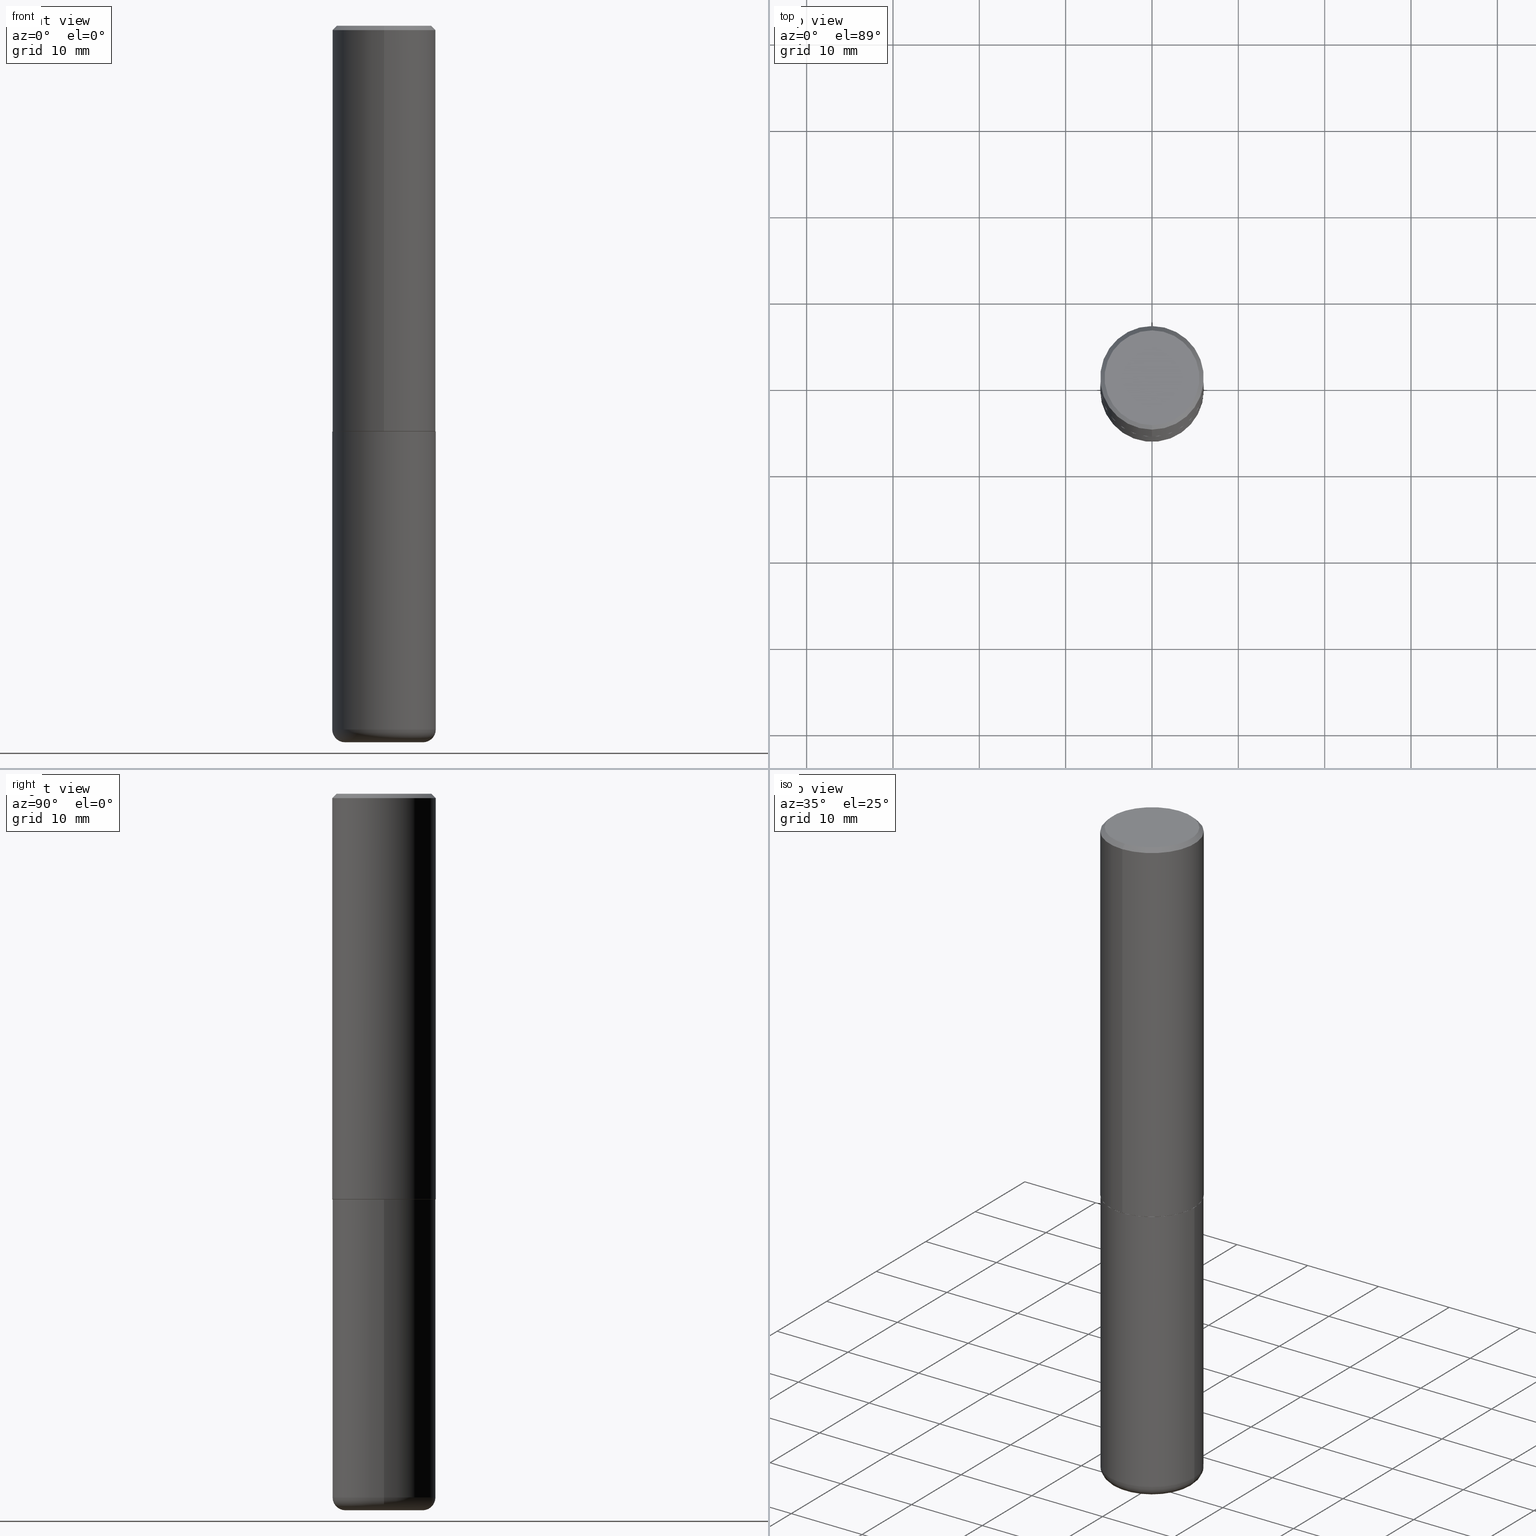
[diagram: canonical four-view strip — front | top / right | iso, engineering-drawing reading convention]
A machine part, canonical four-view strip (front | top / right | iso — engineering-drawing reading convention). The complete STEP part file that produces these views, byte-faithful:
ISO-10303-21;
HEADER;
FILE_DESCRIPTION (( 'STEP AP203' ),
    '1' );
FILE_NAME ('47546.STEP',
    '2024-03-06T09:44:39',
    ( '' ),
    ( '' ),
    'SwSTEP 2.0',
    'SolidWorks 2023',
    '' );
FILE_SCHEMA (( 'CONFIG_CONTROL_DESIGN' ));
ENDSEC;

DATA;
#1 = DIRECTION ( 'NONE',  ( 6.982962677686265922E-15, 1.000000000000000000, -3.487819265831411744E-15 ) ) ;
#2 = CLOSED_SHELL ( 'NONE', ( #323, #149, #412, #398, #386, #350, #132, #407 ) ) ;
#3 = PRODUCT_DEFINITION_SHAPE ( 'NONE', 'NONE',  #375 ) ;
#4 = CYLINDRICAL_SURFACE ( 'NONE', #363, 0.2361999999999999933 ) ;
#5 = VERTEX_POINT ( 'NONE', #80 ) ;
#6 = CARTESIAN_POINT ( 'NONE',  ( -0.1771000000000000074, -9.944395838780979940E-15, -3.208600000000000119 ) ) ;
#7 = DIRECTION ( 'NONE',  ( 1.000000000000000000, -6.982962677686265133E-15, 0.000000000000000000 ) ) ;
#8 = CARTESIAN_POINT ( 'NONE',  ( 7.991058417971171713E-29, -1.140911357093774644E-14, -3.267700000000000049 ) ) ;
#9 = LINE ( 'NONE', #72, #157 ) ;
#10 = CIRCLE ( 'NONE', #194, 0.2161999999999996425 ) ;
#11 = LOCAL_TIME ( 4, 44, 39.00000000000000000, #176 ) ;
#12 = DIMENSIONAL_EXPONENTS ( 1.000000000000000000, 0.000000000000000000, 0.000000000000000000, 0.000000000000000000, 0.000000000000000000, 0.000000000000000000, 0.000000000000000000 ) ;
#13 = DIRECTION ( 'NONE',  ( -1.000000000000000000, 7.105427357600997914E-15, 0.000000000000000000 ) ) ;
#14 = ORIENTED_EDGE ( 'NONE', *, *, #73, .T. ) ;
#15 = CC_DESIGN_DATE_AND_TIME_ASSIGNMENT ( #308, #32, ( #186 ) ) ;
#16 = DIRECTION ( 'NONE',  ( 1.000000000000000000, -6.982962677686265922E-15, 4.883557194083112340E-29 ) ) ;
#17 = CARTESIAN_POINT ( 'NONE',  ( 4.524916211156691287E-29, -6.460893791100115503E-15, -1.850400000000000489 ) ) ;
#18 = DIRECTION ( 'NONE',  ( -2.445371925614294233E-29, 3.491620077334691546E-15, 1.000000000000000000 ) ) ;
#19 = ORIENTED_EDGE ( 'NONE', *, *, #353, .F. ) ;
#20 = DIRECTION ( 'NONE',  ( -2.445371925614294233E-29, 3.491620077334691546E-15, 1.000000000000000000 ) ) ;
#21 = CARTESIAN_POINT ( 'NONE',  ( 0.000000000000000000, 0.000000000000000000, 0.000000000000000000 ) ) ;
#22 = EDGE_LOOP ( 'NONE', ( #48, #111, #252, #362 ) ) ;
#23 = CARTESIAN_POINT ( 'NONE',  ( -0.2361999999999999933, -9.524465081946761225E-15, -3.208600000000000119 ) ) ;
#24 = FACE_OUTER_BOUND ( 'NONE', #397, .T. ) ;
#25 = EDGE_CURVE ( 'NONE', #68, #302, #195, .T. ) ;
#26 = DIRECTION ( 'NONE',  ( -2.445371925614294233E-29, 3.491620077334691546E-15, 1.000000000000000000 ) ) ;
#27 = PERSON_AND_ORGANIZATION_ROLE ( 'creator' ) ;
#28 = ORIENTED_EDGE ( 'NONE', *, *, #393, .F. ) ;
#29 = CIRCLE ( 'NONE', #408, 0.2362000000000002153 ) ;
#30 = DIRECTION ( 'NONE',  ( 1.000000000000000000, -6.982962677686265133E-15, 0.000000000000000000 ) ) ;
#31 = VECTOR ( 'NONE', #97, 39.37007874015748143 ) ;
#32 = DATE_TIME_ROLE ( 'classification_date' ) ;
#33 = ORIENTED_EDGE ( 'NONE', *, *, #388, .F. ) ;
#34 =( LENGTH_UNIT ( ) NAMED_UNIT ( * ) SI_UNIT ( $, .METRE. ) );
#35 = DIRECTION ( 'NONE',  ( 2.445371925614294233E-29, -3.491620077334691546E-15, -1.000000000000000000 ) ) ;
#36 = CC_DESIGN_PERSON_AND_ORGANIZATION_ASSIGNMENT ( #93, #261, ( #146 ) ) ;
#37 = AXIS2_PLACEMENT_3D ( 'NONE', #288, #264, #7 ) ;
#38 = LOCAL_TIME ( 4, 44, 39.00000000000000000, #180 ) ;
#39 = MECHANICAL_CONTEXT ( 'NONE', #219, 'mechanical' ) ;
#40 = ORIENTED_EDGE ( 'NONE', *, *, #108, .T. ) ;
#41 = EDGE_LOOP ( 'NONE', ( #314, #47, #40, #262 ) ) ;
#42 = AXIS2_PLACEMENT_3D ( 'NONE', #244, #249, #30 ) ;
#43 = FACE_OUTER_BOUND ( 'NONE', #116, .T. ) ;
#44 = LINE ( 'NONE', #271, #31 ) ;
#45 = CARTESIAN_POINT ( 'NONE',  ( -8.038070963430480451E-45, 1.147714573189292330E-30, 3.287054569996039822E-16 ) ) ;
#46 = PLANE ( 'NONE',  #123 ) ;
#47 = ORIENTED_EDGE ( 'NONE', *, *, #190, .T. ) ;
#48 = ORIENTED_EDGE ( 'NONE', *, *, #73, .F. ) ;
#49 = CONICAL_SURFACE ( 'NONE', #233, 0.2351999999999999924, 0.7853981633973801113 ) ;
#50 = DIRECTION ( 'NONE',  ( -6.982962677686265133E-15, -1.000000000000000000, 3.469747663417773847E-15 ) ) ;
#51 = PLANE ( 'NONE',  #203 ) ;
#52 = DIRECTION ( 'NONE',  ( -2.445468806185136597E-29, 3.491481338843145583E-15, 1.000000000000000000 ) ) ;
#53 = ORIENTED_EDGE ( 'NONE', *, *, #117, .T. ) ;
#54 = LOCAL_TIME ( 4, 44, 39.00000000000000000, #193 ) ;
#55 = FACE_OUTER_BOUND ( 'NONE', #131, .T. ) ;
#56 = COORDINATED_UNIVERSAL_TIME_OFFSET ( 5, 0, .BEHIND. ) ;
#57 = UNCERTAINTY_MEASURE_WITH_UNIT (LENGTH_MEASURE( 1.000000000000000082E-05 ), #411, 'distance_accuracy_value', 'NONE');
#58 = CALENDAR_DATE ( 2024, 6, 3 ) ;
#59 = DIRECTION ( 'NONE',  ( -6.982962677686265133E-15, -1.000000000000000000, 3.484499991918703113E-15 ) ) ;
#60 = CARTESIAN_POINT ( 'NONE',  ( 4.525095478964977394E-29, -6.460637069395357576E-15, -1.850400000000000267 ) ) ;
#61 = CALENDAR_DATE ( 2024, 6, 3 ) ;
#62 = CC_DESIGN_PERSON_AND_ORGANIZATION_ASSIGNMENT ( #343, #91, ( #395 ) ) ;
#63 = DIRECTION ( 'NONE',  ( -2.445371925614294233E-29, 3.491620077334691546E-15, 1.000000000000000000 ) ) ;
#64 = FACE_OUTER_BOUND ( 'NONE', #158, .T. ) ;
#65 = PERSON_AND_ORGANIZATION ( #289, #69 ) ;
#66 = DIRECTION ( 'NONE',  ( 6.982962677686265922E-15, 1.000000000000000000, -3.491620077334691546E-15 ) ) ;
#67 = CARTESIAN_POINT ( 'NONE',  ( 4.890743851228601113E-31, -6.983240154669400497E-17, -0.02000000000000005246 ) ) ;
#68 = VERTEX_POINT ( 'NONE', #234 ) ;
#69 = ORGANIZATION ( 'UNSPECIFIED', 'UNSPECIFIED', '' ) ;
#70 = APPLICATION_PROTOCOL_DEFINITION ( 'international standard', 'config_control_design', 1994, #219 ) ;
#71 =( NAMED_UNIT ( * ) SI_UNIT ( $, .STERADIAN. ) SOLID_ANGLE_UNIT ( ) );
#72 = CARTESIAN_POINT ( 'NONE',  ( 1.678301941865357183E-15, 0.2362000000000001043, -8.247206622664545710E-16 ) ) ;
#73 = EDGE_CURVE ( 'NONE', #329, #348, #82, .T. ) ;
#74 = CARTESIAN_POINT ( 'NONE',  ( -1.620449627073635079E-15, -0.2362000000000000766, -0.01999999999999922673 ) ) ;
#75 = CIRCLE ( 'NONE', #265, 0.05909999999999995812 ) ;
#76 = FACE_OUTER_BOUND ( 'NONE', #221, .T. ) ;
#77 = ORIENTED_EDGE ( 'NONE', *, *, #312, .F. ) ;
#78 = CC_DESIGN_DATE_AND_TIME_ASSIGNMENT ( #90, #379, ( #375 ) ) ;
#79 = CARTESIAN_POINT ( 'NONE',  ( -0.2361999999999999933, -7.153400104738381203E-15, -1.850400000000000267 ) ) ;
#80 = CARTESIAN_POINT ( 'NONE',  ( 1.674749228186601644E-15, 0.2351999999999935531, -1.850400000000001377 ) ) ;
#81 = APPROVAL ( #153, 'UNSPECIFIED' ) ;
#82 = LINE ( 'NONE', #74, #181 ) ;
#83 = CONICAL_SURFACE ( 'NONE', #141, 0.2361999999999999933, 0.7853981633974479459 ) ;
#84 = CARTESIAN_POINT ( 'NONE',  ( 1.678301941865380454E-15, 0.2361999999999937760, -1.849400000000001043 ) ) ;
#85 = CARTESIAN_POINT ( 'NONE',  ( -8.038070963430480451E-45, 1.147714573189292330E-30, 3.287054569996039822E-16 ) ) ;
#86 = ORIENTED_EDGE ( 'NONE', *, *, #177, .T. ) ;
#87 = ADVANCED_FACE ( 'NONE', ( #198 ), #285, .T. ) ;
#88 = CC_DESIGN_SECURITY_CLASSIFICATION ( #186, ( #395 ) ) ;
#89 = CARTESIAN_POINT ( 'NONE',  ( 0.000000000000000000, 0.000000000000000000, 0.000000000000000000 ) ) ;
#90 = DATE_AND_TIME ( #61, #11 ) ;
#91 = PERSON_AND_ORGANIZATION_ROLE ( 'design_supplier' ) ;
#92 = AXIS2_PLACEMENT_3D ( 'NONE', #304, #178, #113 ) ;
#93 = PERSON_AND_ORGANIZATION ( #289, #69 ) ;
#94 = VECTOR ( 'NONE', #300, 39.37007874015748143 ) ;
#95 = AXIS2_PLACEMENT_3D ( 'NONE', #85, #20, #206 ) ;
#96 = CARTESIAN_POINT ( 'NONE',  ( 0.2361999999999999933, -8.110012853864854101E-15, -1.850400000000000267 ) ) ;
#97 = DIRECTION ( 'NONE',  ( -2.445371925614294233E-29, 3.491620077334691546E-15, 1.000000000000000000 ) ) ;
#98 = DIRECTION ( 'NONE',  ( -6.982962677686265133E-15, -1.000000000000000000, 3.484499991918703113E-15 ) ) ;
#99 = ORIENTED_EDGE ( 'NONE', *, *, #225, .T. ) ;
#100 = DIRECTION ( 'NONE',  ( -6.982962677686265922E-15, -1.000000000000000000, 3.487819265831411744E-15 ) ) ;
#101 = ORIENTED_EDGE ( 'NONE', *, *, #257, .F. ) ;
#102 = AXIS2_PLACEMENT_3D ( 'NONE', #60, #52, #142 ) ;
#103 = CIRCLE ( 'NONE', #280, 0.2361999999999999933 ) ;
#104 = EDGE_CURVE ( 'NONE', #5, #68, #128, .T. ) ;
#105 = DIRECTION ( 'NONE',  ( 6.982962677686265922E-15, 1.000000000000000000, -3.487819265831411744E-15 ) ) ;
#106 = ORIENTED_EDGE ( 'NONE', *, *, #353, .T. ) ;
#107 = CARTESIAN_POINT ( 'NONE',  ( -1.642392821791764560E-15, -0.2352000000000064595, -1.850399999999999823 ) ) ;
#108 = EDGE_CURVE ( 'NONE', #302, #348, #44, .T. ) ;
#109 = DIRECTION ( 'NONE',  ( -1.000000000000000000, 6.982962677686265922E-15, -4.876176775795935793E-29 ) ) ;
#110 = DIRECTION ( 'NONE',  ( -2.445468806185136597E-29, 3.491481338843145583E-15, 1.000000000000000000 ) ) ;
#111 = ORIENTED_EDGE ( 'NONE', *, *, #225, .F. ) ;
#112 = CARTESIAN_POINT ( 'NONE',  ( 7.991058417971171713E-29, -1.140911357093774644E-14, -3.267700000000000049 ) ) ;
#113 = DIRECTION ( 'NONE',  ( 1.000000000000000000, -6.982962677686266711E-15, 0.000000000000000000 ) ) ;
#114 = DATE_AND_TIME ( #179, #54 ) ;
#115 = FACE_OUTER_BOUND ( 'NONE', #41, .T. ) ;
#116 = EDGE_LOOP ( 'NONE', ( #189, #402 ) ) ;
#117 = EDGE_CURVE ( 'NONE', #331, #390, #9, .T. ) ;
#118 = CARTESIAN_POINT ( 'NONE',  ( 4.522470839231075964E-29, -6.457402171022779437E-15, -1.849400000000000155 ) ) ;
#119 = PERSON_AND_ORGANIZATION_ROLE ( 'classification_officer' ) ;
#120 = DIRECTION ( 'NONE',  ( -2.445468806185136597E-29, 3.491481338843145583E-15, 1.000000000000000000 ) ) ;
#121 = DATE_AND_TIME ( #381, #214 ) ;
#122 = EDGE_CURVE ( 'NONE', #368, #392, #170, .T. ) ;
#123 = AXIS2_PLACEMENT_3D ( 'NONE', #8, #139, #109 ) ;
#124 = CONICAL_SURFACE ( 'NONE', #380, 0.2361999999999999933, 0.7853981633974479459 ) ;
#125 = ORIENTED_EDGE ( 'NONE', *, *, #122, .F. ) ;
#126 = ORIENTED_EDGE ( 'NONE', *, *, #338, .T. ) ;
#127 = CC_DESIGN_PERSON_AND_ORGANIZATION_ASSIGNMENT ( #340, #406, ( #395 ) ) ;
#128 = CIRCLE ( 'NONE', #394, 0.2351999999999999924 ) ;
#129 = ORIENTED_EDGE ( 'NONE', *, *, #209, .F. ) ;
#130 = AXIS2_PLACEMENT_3D ( 'NONE', #332, #376, #371 ) ;
#131 = EDGE_LOOP ( 'NONE', ( #169, #208, #226, #19 ) ) ;
#132 = ADVANCED_FACE ( 'NONE', ( #135 ), #133, .F. ) ;
#133 = PLANE ( 'NONE',  #378 ) ;
#134 = CARTESIAN_POINT ( 'NONE',  ( 4.522470839231075964E-29, -6.457402171022779437E-15, -1.849400000000000155 ) ) ;
#135 = FACE_OUTER_BOUND ( 'NONE', #197, .T. ) ;
#136 = DIRECTION ( 'NONE',  ( -2.445468806185136597E-29, 3.491481338843145583E-15, 1.000000000000000000 ) ) ;
#137 = ORIENTED_EDGE ( 'NONE', *, *, #393, .T. ) ;
#138 = DIRECTION ( 'NONE',  ( -2.445371925614294233E-29, 3.491620077334691546E-15, 1.000000000000000000 ) ) ;
#139 = DIRECTION ( 'NONE',  ( 2.438088387897960049E-29, -3.491481338843145188E-15, -1.000000000000000000 ) ) ;
#140 = AXIS2_PLACEMENT_3D ( 'NONE', #21, #18, #207 ) ;
#141 = AXIS2_PLACEMENT_3D ( 'NONE', #416, #35, #1 ) ;
#142 = DIRECTION ( 'NONE',  ( 1.000000000000000000, -6.982962677686269077E-15, 0.000000000000000000 ) ) ;
#143 = DIRECTION ( 'NONE',  ( 1.000000000000000000, -6.982962677686266711E-15, 4.876176775795936353E-29 ) ) ;
#144 = ORIENTED_EDGE ( 'NONE', *, *, #25, .T. ) ;
#145 = DIRECTION ( 'NONE',  ( 1.000000000000000000, -6.982962677686269077E-15, 0.000000000000000000 ) ) ;
#146 = PRODUCT ( '47546', '47546', '', ( #39 ) ) ;
#147 = APPROVAL ( #417, 'UNSPECIFIED' ) ;
#148 = CC_DESIGN_PERSON_AND_ORGANIZATION_ASSIGNMENT ( #278, #119, ( #186 ) ) ;
#149 = ADVANCED_FACE ( 'NONE', ( #372 ), #335, .T. ) ;
#150 = CLOSED_SHELL ( 'NONE', ( #361, #87, #299, #235, #272, #283 ) ) ;
#151 = AXIS2_PLACEMENT_3D ( 'NONE', #112, #110, #216 ) ;
#152 = DIRECTION ( 'NONE',  ( -6.982962677686265922E-15, -1.000000000000000000, 3.491620077334691941E-15 ) ) ;
#153 = APPROVAL_STATUS ( 'not_yet_approved' ) ;
#154 = DIRECTION ( 'NONE',  ( -6.982962677686265922E-15, -1.000000000000000000, 3.487819265831411744E-15 ) ) ;
#155 = CIRCLE ( 'NONE', #42, 0.2361999999999999933 ) ;
#156 = PERSON_AND_ORGANIZATION ( #289, #69 ) ;
#157 = VECTOR ( 'NONE', #160, 39.37007874015748143 ) ;
#158 = EDGE_LOOP ( 'NONE', ( #296, #212, #106, #192 ) ) ;
#159 = DIRECTION ( 'NONE',  ( 2.438088387897960049E-29, -3.491481338843145188E-15, -1.000000000000000000 ) ) ;
#160 = DIRECTION ( 'NONE',  ( -2.445371925614294233E-29, 3.491620077334691546E-15, 1.000000000000000000 ) ) ;
#161 = DIRECTION ( 'NONE',  ( -2.445468806185136597E-29, 3.491481338843145583E-15, 1.000000000000000000 ) ) ;
#162 = EDGE_CURVE ( 'NONE', #286, #418, #259, .T. ) ;
#163 = ORIENTED_EDGE ( 'NONE', *, *, #257, .T. ) ;
#164 = CIRCLE ( 'NONE', #230, 0.2361999999999999933 ) ;
#165 = APPROVAL_PERSON_ORGANIZATION ( #211, #201, #250 ) ;
#166 = DIRECTION ( 'NONE',  ( -2.445371925614294233E-29, 3.491620077334691546E-15, 1.000000000000000000 ) ) ;
#167 = VERTEX_POINT ( 'NONE', #377 ) ;
#168 = CARTESIAN_POINT ( 'NONE',  ( -1.620449627073635079E-15, -0.2362000000000000766, -0.01999999999999922673 ) ) ;
#169 = ORIENTED_EDGE ( 'NONE', *, *, #205, .T. ) ;
#170 = CIRCLE ( 'NONE', #37, 0.2361999999999999933 ) ;
#171 = EDGE_CURVE ( 'NONE', #368, #286, #172, .T. ) ;
#172 = LINE ( 'NONE', #404, #94 ) ;
#173 = EDGE_LOOP ( 'NONE', ( #33, #232, #144, #258 ) ) ;
#174 = DATE_AND_TIME ( #58, #248 ) ;
#175 = CARTESIAN_POINT ( 'NONE',  ( 4.890743851228601113E-31, -6.983240154669400497E-17, -0.02000000000000005246 ) ) ;
#176 = COORDINATED_UNIVERSAL_TIME_OFFSET ( 5, 0, .BEHIND. ) ;
#177 = EDGE_CURVE ( 'NONE', #167, #392, #273, .T. ) ;
#178 = DIRECTION ( 'NONE',  ( -6.982962677686266711E-15, -1.000000000000000000, 3.491481338843145583E-15 ) ) ;
#179 = CALENDAR_DATE ( 2024, 6, 3 ) ;
#180 = COORDINATED_UNIVERSAL_TIME_OFFSET ( 5, 0, .BEHIND. ) ;
#181 = VECTOR ( 'NONE', #237, 39.37007874015748143 ) ;
#182 = PERSON_AND_ORGANIZATION ( #289, #69 ) ;
#183 = DIRECTION ( 'NONE',  ( 1.000000000000000000, -6.982962677686265922E-15, 0.000000000000000000 ) ) ;
#184 =( NAMED_UNIT ( * ) PLANE_ANGLE_UNIT ( ) SI_UNIT ( $, .RADIAN. ) );
#185 = DIRECTION ( 'NONE',  ( 2.445371925614293953E-29, -3.491620077334691546E-15, -1.000000000000000000 ) ) ;
#186 = SECURITY_CLASSIFICATION ( '', '', #306 ) ;
#187 = ORIENTED_EDGE ( 'NONE', *, *, #312, .T. ) ;
#188 = DIRECTION ( 'NONE',  ( -6.982962677686265922E-15, -1.000000000000000000, 3.491620077334691152E-15 ) ) ;
#189 = ORIENTED_EDGE ( 'NONE', *, *, #385, .T. ) ;
#190 = EDGE_CURVE ( 'NONE', #331, #302, #400, .T. ) ;
#191 = DIRECTION ( 'NONE',  ( 0.000000000000000000, 0.000000000000000000, 1.000000000000000000 ) ) ;
#192 = ORIENTED_EDGE ( 'NONE', *, *, #162, .F. ) ;
#193 = COORDINATED_UNIVERSAL_TIME_OFFSET ( 5, 0, .BEHIND. ) ;
#194 = AXIS2_PLACEMENT_3D ( 'NONE', #45, #309, #188 ) ;
#195 = LINE ( 'NONE', #107, #202 ) ;
#196 = CARTESIAN_POINT ( 'NONE',  ( -1.551844647095918761E-15, -0.2161999999999996425, 1.083593717719362934E-15 ) ) ;
#197 = EDGE_LOOP ( 'NONE', ( #337, #292 ) ) ;
#198 = FACE_OUTER_BOUND ( 'NONE', #360, .T. ) ;
#199 = CARTESIAN_POINT ( 'NONE',  ( 4.525095478964977394E-29, -6.460637069395357576E-15, -1.850400000000000267 ) ) ;
#200 = ORIENTED_EDGE ( 'NONE', *, *, #355, .T. ) ;
#201 = APPROVAL ( #301, 'UNSPECIFIED' ) ;
#202 = VECTOR ( 'NONE', #326, 39.37007874015748143 ) ;
#203 = AXIS2_PLACEMENT_3D ( 'NONE', #217, #185, #66 ) ;
#204 = CARTESIAN_POINT ( 'NONE',  ( -0.1771000000000000074, -9.837603733926685782E-15, -3.267700000000000049 ) ) ;
#205 = EDGE_CURVE ( 'NONE', #392, #368, #155, .T. ) ;
#206 = DIRECTION ( 'NONE',  ( -6.982962677686265922E-15, -1.000000000000000000, 3.491620077334691152E-15 ) ) ;
#207 = DIRECTION ( 'NONE',  ( -6.982962677686265922E-15, -1.000000000000000000, 3.491620077334691941E-15 ) ) ;
#208 = ORIENTED_EDGE ( 'NONE', *, *, #171, .T. ) ;
#209 = EDGE_CURVE ( 'NONE', #245, #390, #239, .T. ) ;
#210 = LINE ( 'NONE', #334, #310 ) ;
#211 = PERSON_AND_ORGANIZATION ( #289, #69 ) ;
#212 = ORIENTED_EDGE ( 'NONE', *, *, #122, .T. ) ;
#213 = AXIS2_PLACEMENT_3D ( 'NONE', #325, #399, #98 ) ;
#214 = LOCAL_TIME ( 4, 44, 39.00000000000000000, #56 ) ;
#215 = CARTESIAN_POINT ( 'NONE',  ( 1.579546157692632438E-15, 0.2161999999999996425, -4.261828037201549199E-16 ) ) ;
#216 = DIRECTION ( 'NONE',  ( 1.000000000000000000, -6.982962677686265922E-15, 0.000000000000000000 ) ) ;
#217 = CARTESIAN_POINT ( 'NONE',  ( 1.509716530915768154E-15, 0.2161999999999996425, -5.905355322199570835E-16 ) ) ;
#218 = AXIS2_PLACEMENT_3D ( 'NONE', #118, #26, #275 ) ;
#219 = APPLICATION_CONTEXT ( 'configuration controlled 3d designs of mechanical parts and assemblies' ) ;
#220 = ORIENTED_EDGE ( 'NONE', *, *, #263, .T. ) ;
#221 = EDGE_LOOP ( 'NONE', ( #383, #228, #284, #277 ) ) ;
#222 = FACE_OUTER_BOUND ( 'NONE', #354, .T. ) ;
#223 = CIRCLE ( 'NONE', #213, 0.2351999999999999924 ) ;
#224 = CC_DESIGN_APPROVAL ( #81, ( #186 ) ) ;
#225 = EDGE_CURVE ( 'NONE', #245, #329, #10, .T. ) ;
#226 = ORIENTED_EDGE ( 'NONE', *, *, #385, .F. ) ;
#227 = PRODUCT_RELATED_PRODUCT_CATEGORY ( 'detail', '', ( #146 ) ) ;
#228 = ORIENTED_EDGE ( 'NONE', *, *, #388, .T. ) ;
#229 = MANIFOLD_SOLID_BREP ( 'Body-Move/Copy2[1]', #150 ) ;
#230 = AXIS2_PLACEMENT_3D ( 'NONE', #328, #287, #100 ) ;
#231 = CARTESIAN_POINT ( 'NONE',  ( 4.524916211156691287E-29, -6.460893791100115503E-15, -1.850400000000000489 ) ) ;
#232 = ORIENTED_EDGE ( 'NONE', *, *, #104, .T. ) ;
#233 = AXIS2_PLACEMENT_3D ( 'NONE', #17, #339, #59 ) ;
#234 = CARTESIAN_POINT ( 'NONE',  ( -1.642392821791764560E-15, -0.2352000000000064595, -1.850399999999999823 ) ) ;
#235 = ADVANCED_FACE ( 'NONE', ( #64 ), #4, .T. ) ;
#236 = FACE_OUTER_BOUND ( 'NONE', #324, .T. ) ;
#237 = DIRECTION ( 'NONE',  ( -4.851104656540961908E-15, -0.7071067811865496822, -0.7071067811865453523 ) ) ;
#238 = PLANE ( 'NONE',  #414 ) ;
#239 = LINE ( 'NONE', #366, #384 ) ;
#240 = CARTESIAN_POINT ( 'NONE',  ( 0.000000000000000000, 0.000000000000000000, 0.000000000000000000 ) ) ;
#241 = CIRCLE ( 'NONE', #316, 0.2361999999999999933 ) ;
#242 = DIRECTION ( 'NONE',  ( -2.445371925614294233E-29, 3.491620077334691546E-15, 1.000000000000000000 ) ) ;
#243 = CYLINDRICAL_SURFACE ( 'NONE', #130, 0.2361999999999999933 ) ;
#244 = CARTESIAN_POINT ( 'NONE',  ( 7.846531211525630380E-29, -1.120276702381211762E-14, -3.208600000000000119 ) ) ;
#245 = VERTEX_POINT ( 'NONE', #215 ) ;
#246 = CYLINDRICAL_SURFACE ( 'NONE', #391, 0.2362000000000001043 ) ;
#247 = CIRCLE ( 'NONE', #253, 0.1771000000000000074 ) ;
#248 = LOCAL_TIME ( 4, 44, 39.00000000000000000, #254 ) ;
#249 = DIRECTION ( 'NONE',  ( -2.445468806185136597E-29, 3.491481338843145583E-15, 1.000000000000000000 ) ) ;
#250 = APPROVAL_ROLE ( '' ) ;
#251 = APPROVAL_ROLE ( '' ) ;
#252 = ORIENTED_EDGE ( 'NONE', *, *, #209, .T. ) ;
#253 = AXIS2_PLACEMENT_3D ( 'NONE', #341, #344, #183 ) ;
#254 = COORDINATED_UNIVERSAL_TIME_OFFSET ( 5, 0, .BEHIND. ) ;
#255 = CARTESIAN_POINT ( 'NONE',  ( 0.000000000000000000, 0.000000000000000000, 0.000000000000000000 ) ) ;
#256 = DIRECTION ( 'NONE',  ( 2.445371925614294233E-29, -3.491620077334691546E-15, -1.000000000000000000 ) ) ;
#257 = EDGE_CURVE ( 'NONE', #333, #167, #247, .T. ) ;
#258 = ORIENTED_EDGE ( 'NONE', *, *, #190, .F. ) ;
#259 = CIRCLE ( 'NONE', #102, 0.2361999999999999933 ) ;
#260 = AXIS2_PLACEMENT_3D ( 'NONE', #231, #166, #293 ) ;
#261 = PERSON_AND_ORGANIZATION_ROLE ( 'design_owner' ) ;
#262 = ORIENTED_EDGE ( 'NONE', *, *, #389, .F. ) ;
#263 = EDGE_CURVE ( 'NONE', #333, #368, #75, .T. ) ;
#264 = DIRECTION ( 'NONE',  ( -2.445468806185136597E-29, 3.491481338843145583E-15, 1.000000000000000000 ) ) ;
#265 = AXIS2_PLACEMENT_3D ( 'NONE', #6, #321, #13 ) ;
#266 = DIRECTION ( 'NONE',  ( -2.445371925614293953E-29, 3.491620077334691546E-15, 1.000000000000000000 ) ) ;
#267 = APPROVAL_PERSON_ORGANIZATION ( #65, #81, #251 ) ;
#268 = EDGE_CURVE ( 'NONE', #68, #5, #223, .T. ) ;
#269 = DIRECTION ( 'NONE',  ( 1.000000000000000000, -6.982962677686265922E-15, 4.883557194083112340E-29 ) ) ;
#270 = EDGE_LOOP ( 'NONE', ( #298, #163, #86, #125 ) ) ;
#271 = CARTESIAN_POINT ( 'NONE',  ( -1.649375784469496722E-15, -0.2362000000000001043, 8.247206622664545710E-16 ) ) ;
#272 = ADVANCED_FACE ( 'NONE', ( #359 ), #356, .T. ) ;
#273 = CIRCLE ( 'NONE', #92, 0.05909999999999995812 ) ;
#274 = CC_DESIGN_APPROVAL ( #147, ( #375 ) ) ;
#275 = DIRECTION ( 'NONE',  ( -6.982962677686265133E-15, -1.000000000000000000, 3.469747663417773847E-15 ) ) ;
#276 = APPROVAL_DATE_TIME ( #121, #201 ) ;
#277 = ORIENTED_EDGE ( 'NONE', *, *, #25, .F. ) ;
#278 = PERSON_AND_ORGANIZATION ( #289, #69 ) ;
#279 = ORIENTED_EDGE ( 'NONE', *, *, #205, .F. ) ;
#280 = AXIS2_PLACEMENT_3D ( 'NONE', #405, #120, #145 ) ;
#281 = CALENDAR_DATE ( 2024, 6, 3 ) ;
#282 = CIRCLE ( 'NONE', #95, 0.2161999999999996425 ) ;
#283 = ADVANCED_FACE ( 'NONE', ( #236 ), #46, .T. ) ;
#284 = ORIENTED_EDGE ( 'NONE', *, *, #338, .F. ) ;
#285 = TOROIDAL_SURFACE ( 'NONE', #320, 0.1771000000000000074, 0.05909999999999995812 ) ;
#286 = VERTEX_POINT ( 'NONE', #79 ) ;
#287 = DIRECTION ( 'NONE',  ( -2.445371925614294233E-29, 3.491620077334691546E-15, 1.000000000000000000 ) ) ;
#288 = CARTESIAN_POINT ( 'NONE',  ( 7.846531211525630380E-29, -1.120276702381211762E-14, -3.208600000000000119 ) ) ;
#289 = PERSON ( 'UNSPECIFIED', 'UNSPECIFIED', 'UNSPECIFIED', ('UNSPECIFIED'), ('UNSPECIFIED'), ('UNSPECIFIED') ) ;
#290 = CARTESIAN_POINT ( 'NONE',  ( 4.524916211156691287E-29, -6.460893791100115503E-15, -1.850400000000000489 ) ) ;
#291 = CARTESIAN_POINT ( 'NONE',  ( 7.846531211525630380E-29, -1.120276702381211762E-14, -3.208600000000000119 ) ) ;
#292 = ORIENTED_EDGE ( 'NONE', *, *, #104, .F. ) ;
#293 = DIRECTION ( 'NONE',  ( -6.982962677686265133E-15, -1.000000000000000000, 3.484499991918703113E-15 ) ) ;
#294 = DIRECTION ( 'NONE',  ( -6.982962677686265133E-15, -1.000000000000000000, 3.484499991918703113E-15 ) ) ;
#295 = FACE_OUTER_BOUND ( 'NONE', #173, .T. ) ;
#296 = ORIENTED_EDGE ( 'NONE', *, *, #171, .F. ) ;
#297 = CARTESIAN_POINT ( 'NONE',  ( 1.671196514507800548E-15, 0.2351999999999935531, -1.850400000000001377 ) ) ;
#298 = ORIENTED_EDGE ( 'NONE', *, *, #263, .F. ) ;
#299 = ADVANCED_FACE ( 'NONE', ( #43 ), #238, .F. ) ;
#300 = DIRECTION ( 'NONE',  ( -2.445468806185136877E-29, 3.491481338843145188E-15, 1.000000000000000000 ) ) ;
#301 = APPROVAL_STATUS ( 'not_yet_approved' ) ;
#302 = VERTEX_POINT ( 'NONE', #365 ) ;
#303 = APPROVAL_DATE_TIME ( #174, #81 ) ;
#304 = CARTESIAN_POINT ( 'NONE',  ( 0.1771000000000000074, -1.243944971403035492E-14, -3.208600000000000119 ) ) ;
#305 = APPROVAL_ROLE ( '' ) ;
#306 = SECURITY_CLASSIFICATION_LEVEL ( 'unclassified' ) ;
#307 = ORIENTED_EDGE ( 'NONE', *, *, #108, .F. ) ;
#308 = DATE_AND_TIME ( #281, #38 ) ;
#309 = DIRECTION ( 'NONE',  ( -2.445371925614294233E-29, 3.491620077334691546E-15, 1.000000000000000000 ) ) ;
#310 = VECTOR ( 'NONE', #313, 39.37007874015748143 ) ;
#311 = LENGTH_MEASURE_WITH_UNIT ( LENGTH_MEASURE( 0.02539999999999999897 ), #34 );
#312 = EDGE_CURVE ( 'NONE', #348, #390, #164, .T. ) ;
#313 = DIRECTION ( 'NONE',  ( -2.445468806185136877E-29, 3.491481338843145188E-15, 1.000000000000000000 ) ) ;
#314 = ORIENTED_EDGE ( 'NONE', *, *, #117, .F. ) ;
#315 = AXIS2_PLACEMENT_3D ( 'NONE', #291, #136, #269 ) ;
#316 = AXIS2_PLACEMENT_3D ( 'NONE', #175, #63, #154 ) ;
#317 = ORIENTED_EDGE ( 'NONE', *, *, #355, .F. ) ;
#318 = DIRECTION ( 'NONE',  ( 1.000000000000000000, 0.000000000000000000, 0.000000000000000000 ) ) ;
#319 = DIRECTION ( 'NONE',  ( -2.445468806185136597E-29, 3.491481338843145583E-15, 1.000000000000000000 ) ) ;
#320 = AXIS2_PLACEMENT_3D ( 'NONE', #322, #319, #16 ) ;
#321 = DIRECTION ( 'NONE',  ( 7.105427357601001859E-15, 1.000000000000000000, -3.491481338843145583E-15 ) ) ;
#322 = CARTESIAN_POINT ( 'NONE',  ( 7.846531211525630380E-29, -1.120276702381211762E-14, -3.208600000000000119 ) ) ;
#323 = ADVANCED_FACE ( 'NONE', ( #76 ), #327, .T. ) ;
#324 = EDGE_LOOP ( 'NONE', ( #317, #101 ) ) ;
#325 = CARTESIAN_POINT ( 'NONE',  ( 4.524916211156691287E-29, -6.460893791100115503E-15, -1.850400000000000489 ) ) ;
#326 = DIRECTION ( 'NONE',  ( -4.937700262164211199E-15, -0.7071067811864968355, 0.7071067811865981989 ) ) ;
#327 = CONICAL_SURFACE ( 'NONE', #260, 0.2351999999999999924, 0.7853981633973801113 ) ;
#328 = CARTESIAN_POINT ( 'NONE',  ( 4.890743851228601113E-31, -6.983240154669400497E-17, -0.02000000000000005246 ) ) ;
#329 = VERTEX_POINT ( 'NONE', #196 ) ;
#330 = DIRECTION ( 'NONE',  ( -2.445371925614294233E-29, 3.491620077334691546E-15, 1.000000000000000000 ) ) ;
#331 = VERTEX_POINT ( 'NONE', #84 ) ;
#332 = CARTESIAN_POINT ( 'NONE',  ( 0.000000000000000000, 0.000000000000000000, 0.000000000000000000 ) ) ;
#333 = VERTEX_POINT ( 'NONE', #204 ) ;
#334 = CARTESIAN_POINT ( 'NONE',  ( 0.2361999999999999933, -1.649375784469496131E-15, 1.151752954443000088E-29 ) ) ;
#335 = CYLINDRICAL_SURFACE ( 'NONE', #140, 0.2362000000000001043 ) ;
#336 = VECTOR ( 'NONE', #342, 39.37007874015748143 ) ;
#337 = ORIENTED_EDGE ( 'NONE', *, *, #268, .F. ) ;
#338 = EDGE_CURVE ( 'NONE', #302, #331, #29, .T. ) ;
#339 = DIRECTION ( 'NONE',  ( -2.445371925614294233E-29, 3.491620077334691546E-15, 1.000000000000000000 ) ) ;
#340 = PERSON_AND_ORGANIZATION ( #289, #69 ) ;
#341 = CARTESIAN_POINT ( 'NONE',  ( 7.991058417971171713E-29, -1.140911357093774644E-14, -3.267700000000000049 ) ) ;
#342 = DIRECTION ( 'NONE',  ( 5.024295867787719235E-15, 0.7071067811865017205, 0.7071067811865933139 ) ) ;
#343 = PERSON_AND_ORGANIZATION ( #289, #69 ) ;
#344 = DIRECTION ( 'NONE',  ( -2.445468806185136597E-29, 3.491481338843145583E-15, 1.000000000000000000 ) ) ;
#345 = CC_DESIGN_APPROVAL ( #201, ( #395 ) ) ;
#346 = APPLICATION_PROTOCOL_DEFINITION ( 'international standard', 'config_control_design', 1994, #369 ) ;
#347 = EDGE_LOOP ( 'NONE', ( #126, #53, #77, #307 ) ) ;
#348 = VERTEX_POINT ( 'NONE', #168 ) ;
#349 = APPROVAL_PERSON_ORGANIZATION ( #156, #147, #305 ) ;
#350 = ADVANCED_FACE ( 'NONE', ( #295 ), #49, .T. ) ;
#351 = CC_DESIGN_PERSON_AND_ORGANIZATION_ASSIGNMENT ( #182, #27, ( #375 ) ) ;
#352 = ORIENTED_EDGE ( 'NONE', *, *, #177, .F. ) ;
#353 = EDGE_CURVE ( 'NONE', #392, #418, #210, .T. ) ;
#354 = EDGE_LOOP ( 'NONE', ( #28, #14, #187, #129 ) ) ;
#355 = EDGE_CURVE ( 'NONE', #167, #333, #415, .T. ) ;
#356 = TOROIDAL_SURFACE ( 'NONE', #315, 0.1771000000000000074, 0.05909999999999995812 ) ;
#357 = DIRECTION ( 'NONE',  ( -1.000000000000000000, 6.982962677686265922E-15, -4.876176775795935793E-29 ) ) ;
#358 = CARTESIAN_POINT ( 'NONE',  ( 4.524916211156691287E-29, -6.460893791100115503E-15, -1.850400000000000489 ) ) ;
#359 = FACE_OUTER_BOUND ( 'NONE', #270, .T. ) ;
#360 = EDGE_LOOP ( 'NONE', ( #200, #220, #279, #352 ) ) ;
#361 = ADVANCED_FACE ( 'NONE', ( #55 ), #243, .T. ) ;
#362 = ORIENTED_EDGE ( 'NONE', *, *, #389, .T. ) ;
#363 = AXIS2_PLACEMENT_3D ( 'NONE', #240, #161, #143 ) ;
#364 = AXIS2_PLACEMENT_3D ( 'NONE', #255, #191, #318 ) ;
#365 = CARTESIAN_POINT ( 'NONE',  ( -1.649375784469452349E-15, -0.2362000000000066546, -1.849399999999999489 ) ) ;
#366 = CARTESIAN_POINT ( 'NONE',  ( 1.649375784469496525E-15, 0.2361999999999999378, -0.02000000000000087472 ) ) ;
#367 = CARTESIAN_POINT ( 'NONE',  ( 1.649375784469496525E-15, 0.2361999999999999378, -0.02000000000000087472 ) ) ;
#368 = VERTEX_POINT ( 'NONE', #23 ) ;
#369 = APPLICATION_CONTEXT ( 'configuration controlled 3d designs of mechanical parts and assemblies' ) ;
#370 = MANIFOLD_SOLID_BREP ( 'Body-Move/Copy2[2]', #2 ) ;
#371 = DIRECTION ( 'NONE',  ( 1.000000000000000000, -6.982962677686266711E-15, 4.876176775795936353E-29 ) ) ;
#372 = FACE_OUTER_BOUND ( 'NONE', #347, .T. ) ;
#373 = APPROVAL_DATE_TIME ( #114, #147 ) ;
#374 = DESIGN_CONTEXT ( 'detailed design', #369, 'design' ) ;
#375 = PRODUCT_DEFINITION ( 'UNKNOWN', '', #395, #374 ) ;
#376 = DIRECTION ( 'NONE',  ( -2.445468806185136597E-29, 3.491481338843145583E-15, 1.000000000000000000 ) ) ;
#377 = CARTESIAN_POINT ( 'NONE',  ( 0.1771000000000000074, -1.264579626115598374E-14, -3.267700000000000049 ) ) ;
#378 = AXIS2_PLACEMENT_3D ( 'NONE', #358, #266, #396 ) ;
#379 = DATE_TIME_ROLE ( 'creation_date' ) ;
#380 = AXIS2_PLACEMENT_3D ( 'NONE', #67, #256, #105 ) ;
#381 = CALENDAR_DATE ( 2024, 6, 3 ) ;
#382 = LINE ( 'NONE', #297, #336 ) ;
#383 = ORIENTED_EDGE ( 'NONE', *, *, #268, .T. ) ;
#384 = VECTOR ( 'NONE', #387, 39.37007874015748143 ) ;
#385 = EDGE_CURVE ( 'NONE', #418, #286, #103, .T. ) ;
#386 = ADVANCED_FACE ( 'NONE', ( #115 ), #246, .T. ) ;
#387 = DIRECTION ( 'NONE',  ( 4.937700262164545676E-15, 0.7071067811865447972, -0.7071067811865502373 ) ) ;
#388 = EDGE_CURVE ( 'NONE', #5, #331, #382, .T. ) ;
#389 = EDGE_CURVE ( 'NONE', #390, #348, #241, .T. ) ;
#390 = VERTEX_POINT ( 'NONE', #367 ) ;
#391 = AXIS2_PLACEMENT_3D ( 'NONE', #89, #242, #152 ) ;
#392 = VERTEX_POINT ( 'NONE', #401 ) ;
#393 = EDGE_CURVE ( 'NONE', #329, #245, #282, .T. ) ;
#394 = AXIS2_PLACEMENT_3D ( 'NONE', #290, #138, #294 ) ;
#395 = PRODUCT_DEFINITION_FORMATION_WITH_SPECIFIED_SOURCE ( 'ANY', '', #146, .NOT_KNOWN. ) ;
#396 = DIRECTION ( 'NONE',  ( -6.982962677686265922E-15, -1.000000000000000000, 3.491620077334691546E-15 ) ) ;
#397 = EDGE_LOOP ( 'NONE', ( #99, #137 ) ) ;
#398 = ADVANCED_FACE ( 'NONE', ( #403 ), #124, .T. ) ;
#399 = DIRECTION ( 'NONE',  ( -2.445371925614294233E-29, 3.491620077334691546E-15, 1.000000000000000000 ) ) ;
#400 = CIRCLE ( 'NONE', #218, 0.2362000000000002153 ) ;
#401 = CARTESIAN_POINT ( 'NONE',  ( 0.2361999999999999933, -1.285214280828161414E-14, -3.208600000000000119 ) ) ;
#402 = ORIENTED_EDGE ( 'NONE', *, *, #162, .T. ) ;
#403 = FACE_OUTER_BOUND ( 'NONE', #22, .T. ) ;
#404 = CARTESIAN_POINT ( 'NONE',  ( -0.2361999999999999933, 1.678301941865356591E-15, -1.161852468318208757E-29 ) ) ;
#405 = CARTESIAN_POINT ( 'NONE',  ( 4.525095478964977394E-29, -6.460637069395357576E-15, -1.850400000000000267 ) ) ;
#406 = PERSON_AND_ORGANIZATION_ROLE ( 'creator' ) ;
#407 = ADVANCED_FACE ( 'NONE', ( #24 ), #51, .F. ) ;
#408 = AXIS2_PLACEMENT_3D ( 'NONE', #134, #330, #50 ) ;
#409 =( GEOMETRIC_REPRESENTATION_CONTEXT ( 3 ) GLOBAL_UNCERTAINTY_ASSIGNED_CONTEXT ( ( #57 ) ) GLOBAL_UNIT_ASSIGNED_CONTEXT ( ( #411, #184, #71 ) ) REPRESENTATION_CONTEXT ( 'NONE', 'WORKASPACE' ) );
#410 = SHAPE_DEFINITION_REPRESENTATION ( #3, #413 ) ;
#411 =( CONVERSION_BASED_UNIT ( 'INCH', #311 ) LENGTH_UNIT ( ) NAMED_UNIT ( #12 ) );
#412 = ADVANCED_FACE ( 'NONE', ( #222 ), #83, .T. ) ;
#413 = ADVANCED_BREP_SHAPE_REPRESENTATION ( '47546', ( #229, #370, #364 ), #409 ) ;
#414 = AXIS2_PLACEMENT_3D ( 'NONE', #199, #159, #357 ) ;
#415 = CIRCLE ( 'NONE', #151, 0.1771000000000000074 ) ;
#416 = CARTESIAN_POINT ( 'NONE',  ( 4.890743851228601113E-31, -6.983240154669400497E-17, -0.02000000000000005246 ) ) ;
#417 = APPROVAL_STATUS ( 'not_yet_approved' ) ;
#418 = VERTEX_POINT ( 'NONE', #96 ) ;
ENDSEC;
END-ISO-10303-21;
